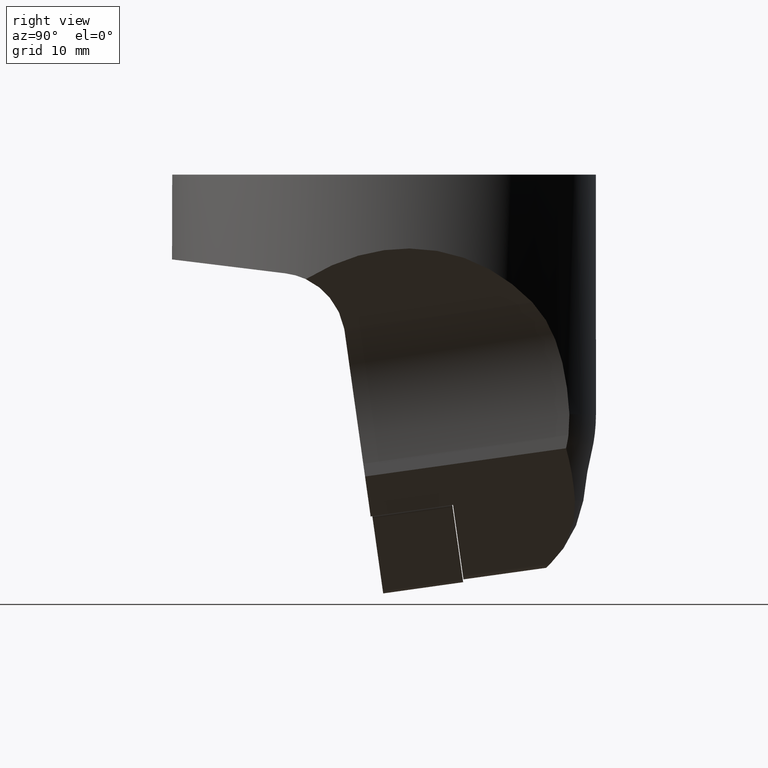
[diagram: clean part render]
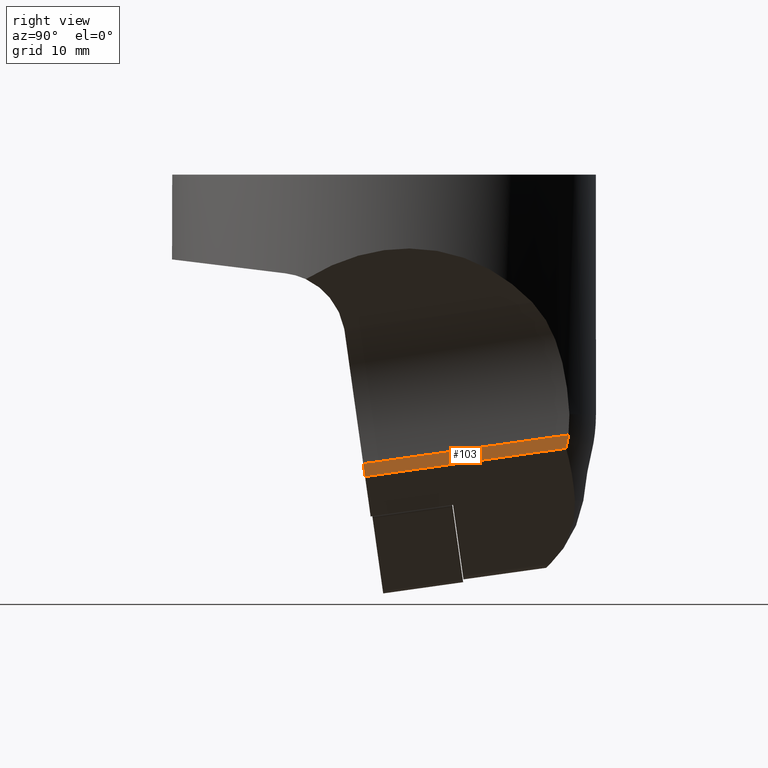
[diagram: same view with one face highlighted and labeled with its STEP entity id]
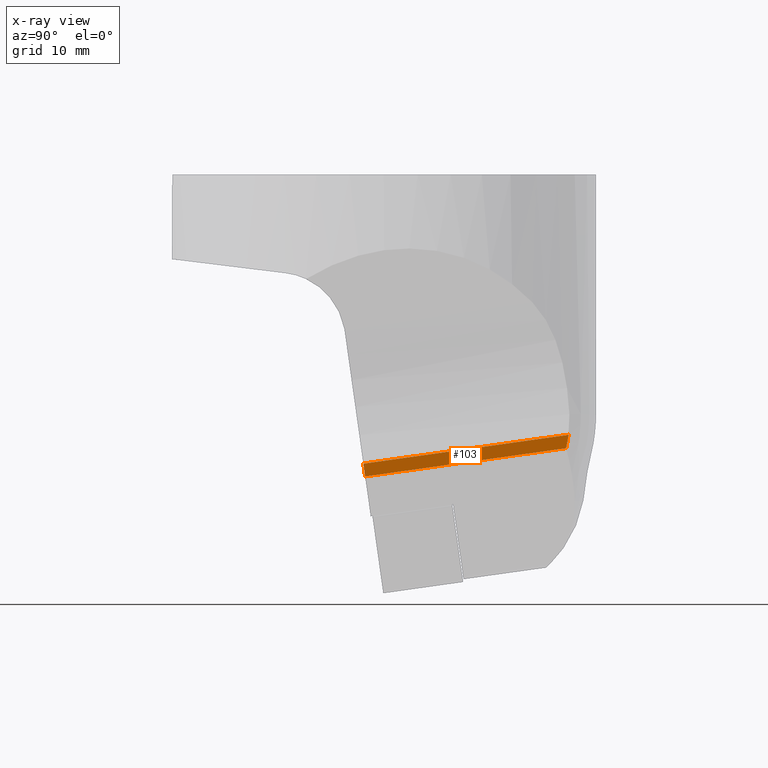
[diagram: x-ray of the same camera — body ghosted, the highlighted face saturated]
A machine part, right view. The second image highlights one B-rep face of the part: STEP entity #103.
The next image is the same camera in x-ray: the body ghosted, the highlighted face saturated — about 0% of this face is hidden behind the body in this view.
In plain terms, the highlighted planar face has unit normal (-1, 0, 0).
Its self-contained STEP definition (entity closure, byte-faithful):
#103=ADVANCED_FACE('',(#170),#171,.F.);
#170=FACE_OUTER_BOUND('',#245,.T.);
#171=PLANE('',#246);
#245=EDGE_LOOP('',(#509,#510,#511,#512,#513));
#246=AXIS2_PLACEMENT_3D('',#514,#515,#516);
#509=ORIENTED_EDGE('',*,*,#664,.F.);
#510=ORIENTED_EDGE('',*,*,#628,.F.);
#511=ORIENTED_EDGE('',*,*,#637,.F.);
#512=ORIENTED_EDGE('',*,*,#672,.F.);
#513=ORIENTED_EDGE('',*,*,#662,.F.);
#514=CARTESIAN_POINT('',(12.0,-3.42750915995023,-25.0430276397777));
#515=DIRECTION('',(-1.0,0.0,0.0));
#516=DIRECTION('',(0.0,0.0,1.0));
#628=EDGE_CURVE('',#762,#764,#765,.T.);
#637=EDGE_CURVE('',#779,#762,#781,.T.);
#662=EDGE_CURVE('',#823,#825,#826,.T.);
#664=EDGE_CURVE('',#764,#823,#828,.T.);
#672=EDGE_CURVE('',#825,#779,#839,.T.);
#762=VERTEX_POINT('',#962);
#764=VERTEX_POINT('',#965);
#765=LINE('',#966,#967);
#779=VERTEX_POINT('',#1006);
#781=LINE('',#1008,#1009);
#823=VERTEX_POINT('',#1181);
#825=VERTEX_POINT('',#1188);
#826=CIRCLE('',#1189,17.5824844528116);
#828=LINE('',#1191,#1192);
#839=CIRCLE('',#1210,2365.99034203827);
#962=CARTESIAN_POINT('',(12.0,-2.22597399833877,-35.5984313162714));
#965=CARTESIAN_POINT('',(12.0,-2.43760684103958,-34.0925853950559));
#966=CARTESIAN_POINT('',(12.0,-2.22597399833877,-35.5984313162714));
#967=VECTOR('',#1327,1.5206447312081);
#1006=CARTESIAN_POINT('',(12.0,21.4748409639416,-32.2674989983456));
#1008=CARTESIAN_POINT('',(12.0,21.4748409639416,-32.2674989983456));
#1009=VECTOR('',#1341,23.9337364400725);
#1181=CARTESIAN_POINT('',(12.0,21.7610548181005,-30.6916852867994));
#1188=CARTESIAN_POINT('',(12.0,21.5847185471531,-31.7231902827742));
#1189=AXIS2_PLACEMENT_3D('',#1383,#1384,#1385);
#1191=CARTESIAN_POINT('',(12.0,-2.43760684103958,-34.0925853950559));
#1192=VECTOR('',#1389,24.4364757614488);
#1210=AXIS2_PLACEMENT_3D('',#1400,#1401,#1402);
#1327=DIRECTION('',(1.46020040294766E-015,-0.139173100960066,0.99026806874157));
#1341=DIRECTION('',(9.27747347268601E-017,-0.99026806874157,-0.139173100960065));
#1383=CARTESIAN_POINT('',(11.9999999999915,4.34949649312371,-28.2459959710252));
#1384=DIRECTION('',(-1.0,4.75559598930991E-013,-7.48392576305729E-014));
#1385=DIRECTION('',(4.81346495103754E-013,0.990278613452296,-0.139098050809486));
#1389=DIRECTION('',(-1.81732101709471E-016,0.990268068741569,0.139173100960076));
#1400=CARTESIAN_POINT('',(11.9999996733841,-2297.67850953377,436.174637763058));
#1401=DIRECTION('',(-1.0,1.35316620142218E-010,-2.73158646265066E-011));
#1402=DIRECTION('',(1.3804616577285E-010,0.980250505199828,-0.197759821641007));